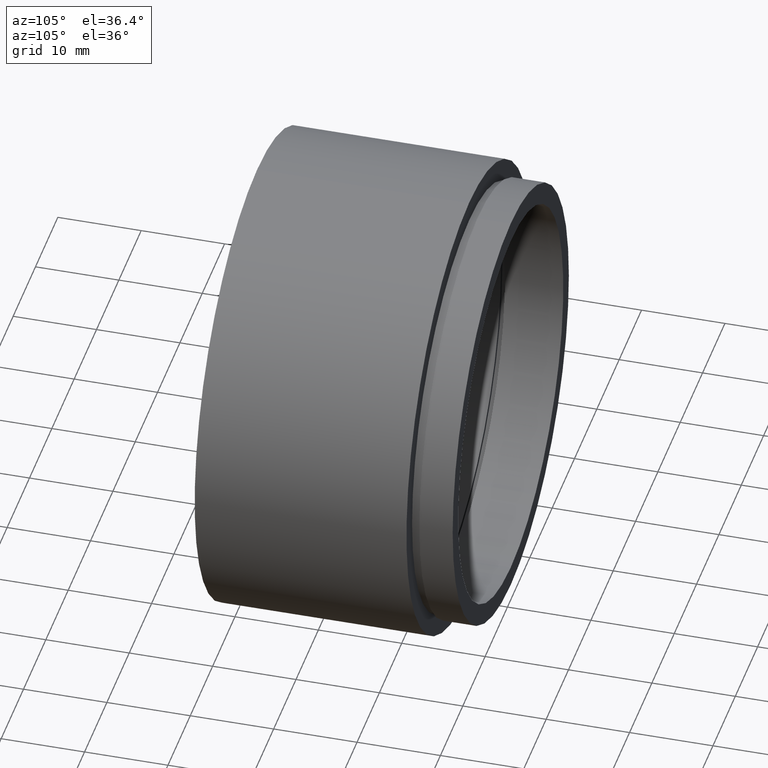
[diagram: clean part render]
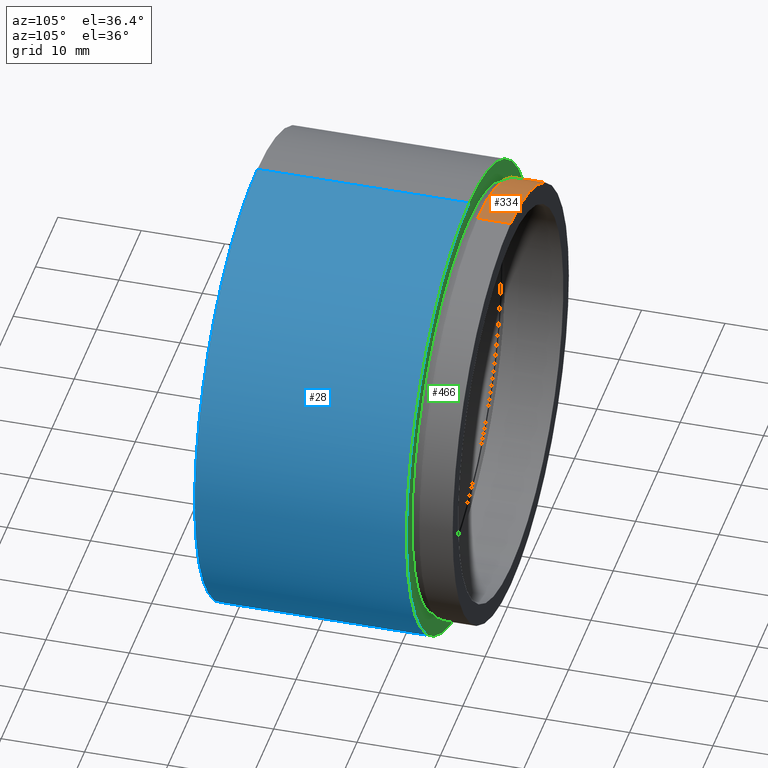
[diagram: same view with three faces highlighted in distinct colors, each labeled with its STEP entity id]
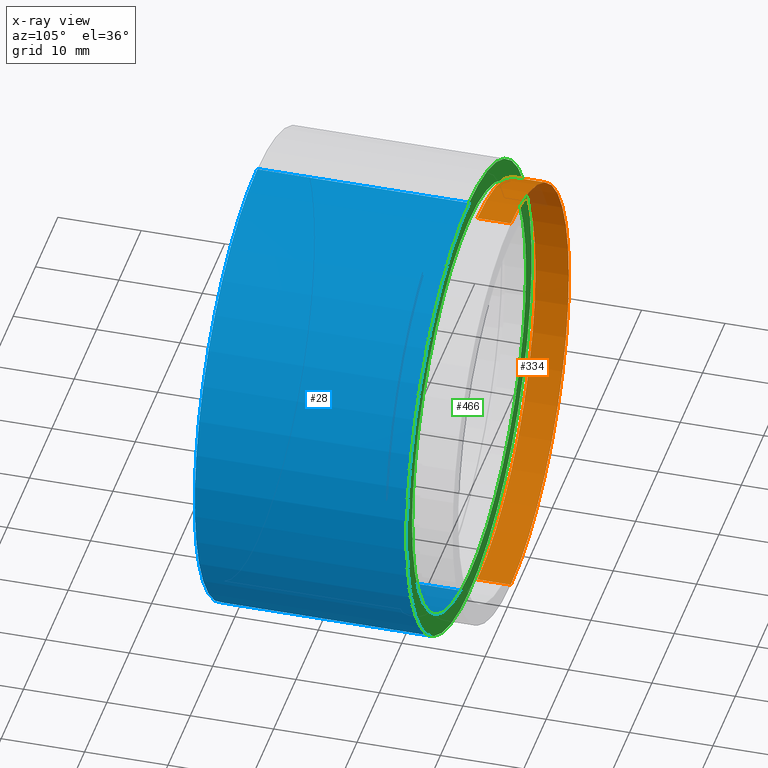
[diagram: x-ray of the same camera — body ghosted, the three highlighted faces saturated]
A machine part, auxiliary view with three faces highlighted in distinct colors.
The next image is the same camera in x-ray (body ghosted, the three faces saturated) — at least one of them is partly hidden behind the body in this view.
Their STEP definitions:

[orange] entity #334 — the highlighted cylindrical surface (partial cylindrical patch) has radius 26 mm, axis along (-0, 1, -0).
#4 = CARTESIAN_POINT ( 'NONE',  ( 0.0000000000000000000, 26.39999999999997700, 0.0000000000000000000 ) ) ;
#18 = EDGE_CURVE ( 'NONE', #520, #239, #389, .T. ) ;
#44 = DIRECTION ( 'NONE',  ( -0.0000000000000000000, 1.000000000000000000, -0.0000000000000000000 ) ) ;
#46 = CARTESIAN_POINT ( 'NONE',  ( 0.0000000000000000000, 30.39999999999998400, 26.00000000000001800 ) ) ;
#56 = DIRECTION ( 'NONE',  ( -0.0000000000000000000, 1.000000000000000000, -0.0000000000000000000 ) ) ;
#65 = VECTOR ( 'NONE', #377, 1000.000000000000000 ) ;
#74 = AXIS2_PLACEMENT_3D ( 'NONE', #544, #589, #214 ) ;
#86 = VECTOR ( 'NONE', #88, 1000.000000000000000 ) ;
#88 = DIRECTION ( 'NONE',  ( -0.0000000000000000000, 1.000000000000000000, -0.0000000000000000000 ) ) ;
#91 = ORIENTED_EDGE ( 'NONE', *, *, #262, .T. ) ;
#99 = EDGE_LOOP ( 'NONE', ( #224, #337, #91, #479 ) ) ;
#116 = CARTESIAN_POINT ( 'NONE',  ( 3.184081677783121000E-015, 26.39999999999997700, -26.00000000000002100 ) ) ;
#194 = LINE ( 'NONE', #230, #86 ) ;
#214 = DIRECTION ( 'NONE',  ( 0.0000000000000000000, 0.0000000000000000000, 1.000000000000000000 ) ) ;
#224 = ORIENTED_EDGE ( 'NONE', *, *, #234, .F. ) ;
#229 = AXIS2_PLACEMENT_3D ( 'NONE', #4, #56, #536 ) ;
#230 = CARTESIAN_POINT ( 'NONE',  ( 3.184081677783120200E-015, 161.3761669434274500, -26.00000000000001800 ) ) ;
#234 = EDGE_CURVE ( 'NONE', #520, #565, #194, .T. ) ;
#239 = VERTEX_POINT ( 'NONE', #606 ) ;
#247 = FACE_OUTER_BOUND ( 'NONE', #99, .T. ) ;
#262 = EDGE_CURVE ( 'NONE', #239, #357, #577, .T. ) ;
#274 = AXIS2_PLACEMENT_3D ( 'NONE', #568, #44, #482 ) ;
#334 = ADVANCED_FACE ( 'NONE', ( #247 ), #623, .T. ) ;
#337 = ORIENTED_EDGE ( 'NONE', *, *, #18, .T. ) ;
#339 = CARTESIAN_POINT ( 'NONE',  ( 0.0000000000000000000, 161.3761669434274500, 26.00000000000001800 ) ) ;
#357 = VERTEX_POINT ( 'NONE', #46 ) ;
#377 = DIRECTION ( 'NONE',  ( -0.0000000000000000000, 1.000000000000000000, -0.0000000000000000000 ) ) ;
#389 = CIRCLE ( 'NONE', #229, 26.00000000000002100 ) ;
#408 = CIRCLE ( 'NONE', #74, 26.00000000000001800 ) ;
#479 = ORIENTED_EDGE ( 'NONE', *, *, #542, .F. ) ;
#482 = DIRECTION ( 'NONE',  ( 0.0000000000000000000, 0.0000000000000000000, 1.000000000000000000 ) ) ;
#520 = VERTEX_POINT ( 'NONE', #116 ) ;
#536 = DIRECTION ( 'NONE',  ( 0.0000000000000000000, 0.0000000000000000000, 1.000000000000000000 ) ) ;
#542 = EDGE_CURVE ( 'NONE', #565, #357, #408, .T. ) ;
#544 = CARTESIAN_POINT ( 'NONE',  ( 0.0000000000000000000, 30.39999999999998400, 0.0000000000000000000 ) ) ;
#565 = VERTEX_POINT ( 'NONE', #582 ) ;
#568 = CARTESIAN_POINT ( 'NONE',  ( 0.0000000000000000000, 161.3761669434274500, 0.0000000000000000000 ) ) ;
#577 = LINE ( 'NONE', #339, #65 ) ;
#582 = CARTESIAN_POINT ( 'NONE',  ( 3.184081677783120200E-015, 30.39999999999998400, -26.00000000000001800 ) ) ;
#589 = DIRECTION ( 'NONE',  ( -0.0000000000000000000, 1.000000000000000000, -0.0000000000000000000 ) ) ;
#606 = CARTESIAN_POINT ( 'NONE',  ( 0.0000000000000000000, 26.39999999999997700, 26.00000000000002100 ) ) ;
#623 = CYLINDRICAL_SURFACE ( 'NONE', #274, 26.00000000000001800 ) ;

[blue] entity #28 — the highlighted cylindrical surface (partial cylindrical patch) has radius 28 mm, axis along (-0, 1, -0).
#7 = DIRECTION ( 'NONE',  ( -0.0000000000000000000, 1.000000000000000000, -0.0000000000000000000 ) ) ;
#26 = CIRCLE ( 'NONE', #261, 28.00000000000001800 ) ;
#28 = ADVANCED_FACE ( 'NONE', ( #551 ), #114, .T. ) ;
#106 = ORIENTED_EDGE ( 'NONE', *, *, #493, .T. ) ;
#110 = CARTESIAN_POINT ( 'NONE',  ( 3.429011037612590900E-015, -2.775557561562891400E-014, -28.00000000000001800 ) ) ;
#114 = CYLINDRICAL_SURFACE ( 'NONE', #453, 28.00000000000001800 ) ;
#118 = VECTOR ( 'NONE', #238, 1000.000000000000000 ) ;
#123 = CARTESIAN_POINT ( 'NONE',  ( 0.0000000000000000000, 161.3761669434274500, 28.00000000000001800 ) ) ;
#159 = DIRECTION ( 'NONE',  ( 0.0000000000000000000, 0.0000000000000000000, 1.000000000000000000 ) ) ;
#184 = EDGE_CURVE ( 'NONE', #226, #572, #464, .T. ) ;
#185 = DIRECTION ( 'NONE',  ( -0.0000000000000000000, 1.000000000000000000, -0.0000000000000000000 ) ) ;
#226 = VERTEX_POINT ( 'NONE', #287 ) ;
#237 = EDGE_CURVE ( 'NONE', #485, #343, #559, .T. ) ;
#238 = DIRECTION ( 'NONE',  ( -0.0000000000000000000, 1.000000000000000000, -0.0000000000000000000 ) ) ;
#250 = DIRECTION ( 'NONE',  ( -0.0000000000000000000, 1.000000000000000000, -0.0000000000000000000 ) ) ;
#261 = AXIS2_PLACEMENT_3D ( 'NONE', #265, #501, #450 ) ;
#265 = CARTESIAN_POINT ( 'NONE',  ( 0.0000000000000000000, -2.775557561562891400E-014, 0.0000000000000000000 ) ) ;
#269 = CARTESIAN_POINT ( 'NONE',  ( 0.0000000000000000000, 25.39999999999997700, 28.00000000000001400 ) ) ;
#287 = CARTESIAN_POINT ( 'NONE',  ( 0.0000000000000000000, -2.775557561562891400E-014, 28.00000000000001800 ) ) ;
#306 = ORIENTED_EDGE ( 'NONE', *, *, #237, .T. ) ;
#343 = VERTEX_POINT ( 'NONE', #387 ) ;
#385 = EDGE_LOOP ( 'NONE', ( #106, #306, #519, #557 ) ) ;
#387 = CARTESIAN_POINT ( 'NONE',  ( 3.429011037612590500E-015, 25.39999999999997700, -28.00000000000001400 ) ) ;
#396 = CARTESIAN_POINT ( 'NONE',  ( 0.0000000000000000000, 161.3761669434274500, 0.0000000000000000000 ) ) ;
#400 = DIRECTION ( 'NONE',  ( 0.0000000000000000000, 0.0000000000000000000, 1.000000000000000000 ) ) ;
#424 = EDGE_CURVE ( 'NONE', #572, #343, #611, .T. ) ;
#444 = CARTESIAN_POINT ( 'NONE',  ( 0.0000000000000000000, 25.39999999999997700, 0.0000000000000000000 ) ) ;
#450 = DIRECTION ( 'NONE',  ( 0.0000000000000000000, 0.0000000000000000000, 1.000000000000000000 ) ) ;
#453 = AXIS2_PLACEMENT_3D ( 'NONE', #396, #250, #400 ) ;
#464 = LINE ( 'NONE', #123, #118 ) ;
#485 = VERTEX_POINT ( 'NONE', #110 ) ;
#486 = VECTOR ( 'NONE', #185, 1000.000000000000000 ) ;
#493 = EDGE_CURVE ( 'NONE', #226, #485, #26, .T. ) ;
#501 = DIRECTION ( 'NONE',  ( -0.0000000000000000000, 1.000000000000000000, -0.0000000000000000000 ) ) ;
#519 = ORIENTED_EDGE ( 'NONE', *, *, #424, .F. ) ;
#551 = FACE_OUTER_BOUND ( 'NONE', #385, .T. ) ;
#557 = ORIENTED_EDGE ( 'NONE', *, *, #184, .F. ) ;
#559 = LINE ( 'NONE', #604, #486 ) ;
#572 = VERTEX_POINT ( 'NONE', #269 ) ;
#604 = CARTESIAN_POINT ( 'NONE',  ( 3.429011037612590900E-015, 161.3761669434274500, -28.00000000000001800 ) ) ;
#605 = AXIS2_PLACEMENT_3D ( 'NONE', #444, #7, #159 ) ;
#611 = CIRCLE ( 'NONE', #605, 28.00000000000001400 ) ;

[green] entity #466 — the highlighted planar face has unit normal (0, -1, 0).
#1 = CARTESIAN_POINT ( 'NONE',  ( 3.122849337825752200E-015, 25.39999999999997700, -25.50000000000001100 ) ) ;
#7 = DIRECTION ( 'NONE',  ( -0.0000000000000000000, 1.000000000000000000, -0.0000000000000000000 ) ) ;
#10 = DIRECTION ( 'NONE',  ( 0.0000000000000000000, 0.0000000000000000000, 1.000000000000000000 ) ) ;
#41 = EDGE_CURVE ( 'NONE', #343, #572, #178, .T. ) ;
#68 = ORIENTED_EDGE ( 'NONE', *, *, #552, .F. ) ;
#112 = CIRCLE ( 'NONE', #241, 25.50000000000001100 ) ;
#119 = AXIS2_PLACEMENT_3D ( 'NONE', #541, #423, #131 ) ;
#125 = ORIENTED_EDGE ( 'NONE', *, *, #424, .T. ) ;
#131 = DIRECTION ( 'NONE',  ( 0.0000000000000000000, 0.0000000000000000000, 1.000000000000000000 ) ) ;
#159 = DIRECTION ( 'NONE',  ( 0.0000000000000000000, 0.0000000000000000000, 1.000000000000000000 ) ) ;
#163 = VERTEX_POINT ( 'NONE', #495 ) ;
#171 = CARTESIAN_POINT ( 'NONE',  ( 0.0000000000000000000, 25.39999999999997700, 0.0000000000000000000 ) ) ;
#178 = CIRCLE ( 'NONE', #406, 28.00000000000001400 ) ;
#201 = CARTESIAN_POINT ( 'NONE',  ( 25.50000000000001100, 25.39999999999998100, 0.0000000000000000000 ) ) ;
#222 = DIRECTION ( 'NONE',  ( -0.0000000000000000000, 1.000000000000000000, -0.0000000000000000000 ) ) ;
#241 = AXIS2_PLACEMENT_3D ( 'NONE', #171, #222, #550 ) ;
#252 = DIRECTION ( 'NONE',  ( 0.0000000000000000000, -0.0000000000000000000, -1.000000000000000000 ) ) ;
#269 = CARTESIAN_POINT ( 'NONE',  ( 0.0000000000000000000, 25.39999999999997700, 28.00000000000001400 ) ) ;
#277 = FACE_BOUND ( 'NONE', #601, .T. ) ;
#299 = ORIENTED_EDGE ( 'NONE', *, *, #41, .T. ) ;
#319 = DIRECTION ( 'NONE',  ( -0.0000000000000000000, 1.000000000000000000, -0.0000000000000000000 ) ) ;
#343 = VERTEX_POINT ( 'NONE', #387 ) ;
#387 = CARTESIAN_POINT ( 'NONE',  ( 3.429011037612590500E-015, 25.39999999999997700, -28.00000000000001400 ) ) ;
#406 = AXIS2_PLACEMENT_3D ( 'NONE', #437, #319, #10 ) ;
#423 = DIRECTION ( 'NONE',  ( -0.0000000000000000000, 1.000000000000000000, -0.0000000000000000000 ) ) ;
#424 = EDGE_CURVE ( 'NONE', #572, #343, #611, .T. ) ;
#434 = VERTEX_POINT ( 'NONE', #1 ) ;
#437 = CARTESIAN_POINT ( 'NONE',  ( 0.0000000000000000000, 25.39999999999997700, 0.0000000000000000000 ) ) ;
#441 = DIRECTION ( 'NONE',  ( 0.0000000000000000000, -1.000000000000000000, 0.0000000000000000000 ) ) ;
#444 = CARTESIAN_POINT ( 'NONE',  ( 0.0000000000000000000, 25.39999999999997700, 0.0000000000000000000 ) ) ;
#466 = ADVANCED_FACE ( 'NONE', ( #277, #491 ), #578, .F. ) ;
#478 = ORIENTED_EDGE ( 'NONE', *, *, #600, .F. ) ;
#488 = CIRCLE ( 'NONE', #119, 25.50000000000001100 ) ;
#491 = FACE_OUTER_BOUND ( 'NONE', #593, .T. ) ;
#495 = CARTESIAN_POINT ( 'NONE',  ( 0.0000000000000000000, 25.39999999999997700, 25.50000000000001100 ) ) ;
#516 = AXIS2_PLACEMENT_3D ( 'NONE', #201, #441, #252 ) ;
#541 = CARTESIAN_POINT ( 'NONE',  ( 0.0000000000000000000, 25.39999999999997700, 0.0000000000000000000 ) ) ;
#550 = DIRECTION ( 'NONE',  ( 0.0000000000000000000, 0.0000000000000000000, 1.000000000000000000 ) ) ;
#552 = EDGE_CURVE ( 'NONE', #434, #163, #112, .T. ) ;
#572 = VERTEX_POINT ( 'NONE', #269 ) ;
#578 = PLANE ( 'NONE',  #516 ) ;
#593 = EDGE_LOOP ( 'NONE', ( #125, #299 ) ) ;
#600 = EDGE_CURVE ( 'NONE', #163, #434, #488, .T. ) ;
#601 = EDGE_LOOP ( 'NONE', ( #478, #68 ) ) ;
#605 = AXIS2_PLACEMENT_3D ( 'NONE', #444, #7, #159 ) ;
#611 = CIRCLE ( 'NONE', #605, 28.00000000000001400 ) ;